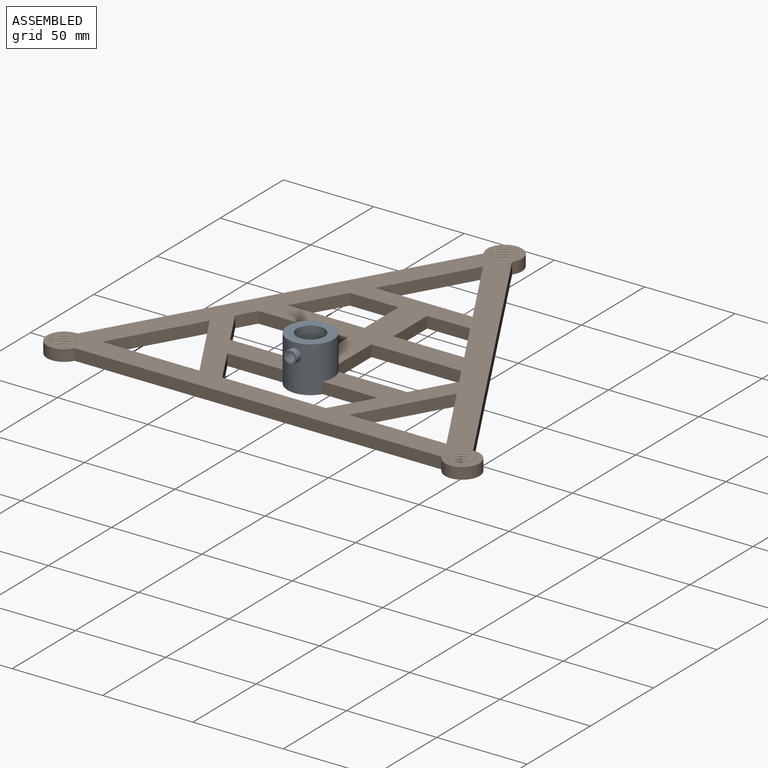
[diagram: assembled view]
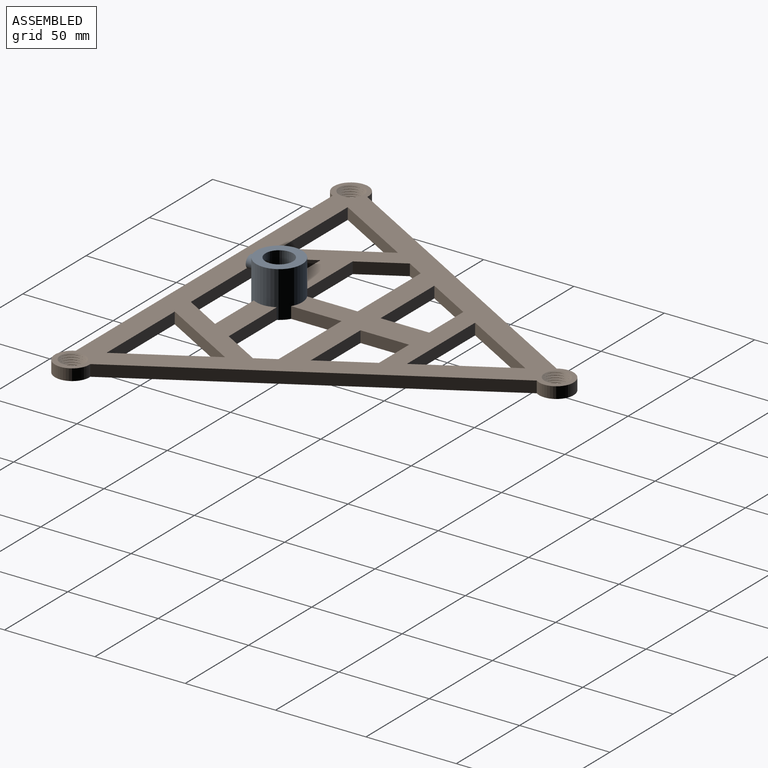
[diagram: assembled view, second angle]
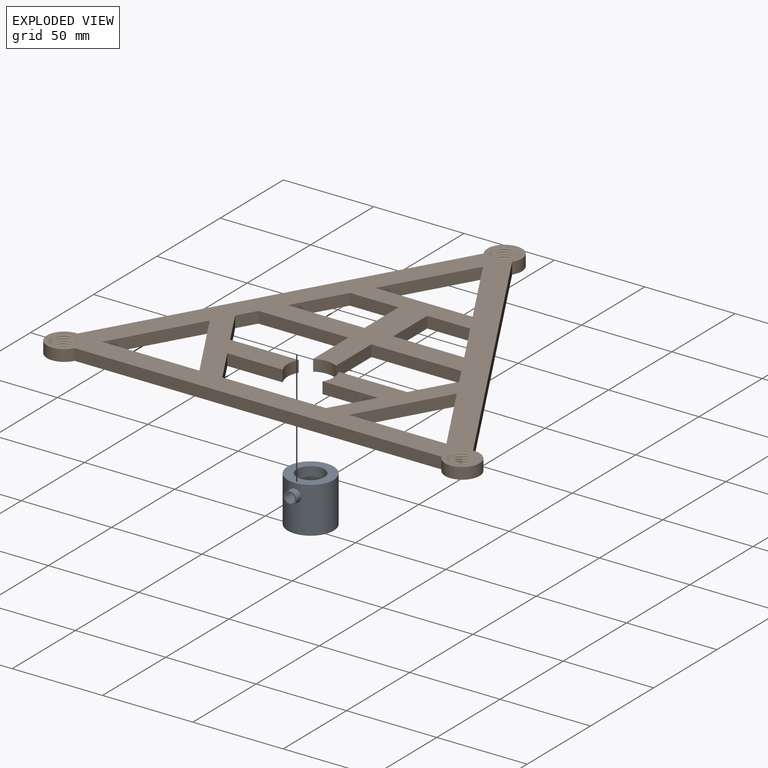
[diagram: exploded view]
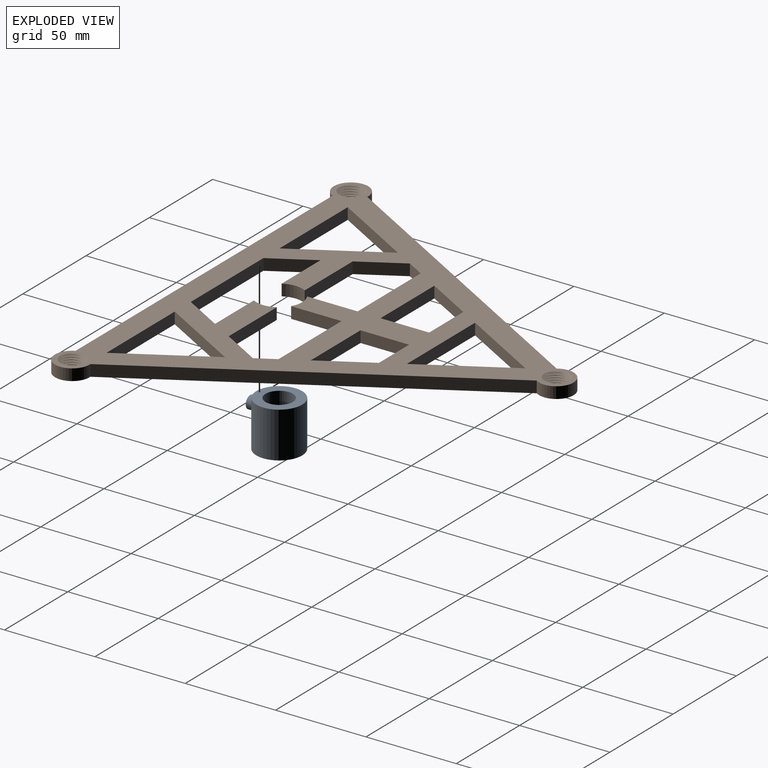
[diagram: exploded view, second angle]
ASSEMBLY  parts=2 mates=2
PART A: 12 faces, bbox 25.7x29.5x25.7 mm
  f0: cylinder r=2.54mm len=2.76mm, axis (0,-1,0), area 0.2mm2, adj f1,f10,f11
  f1: bspline ~9.3x6.89mm, area 122.5mm2, adj f0,f2,f4,f9,f10
  f2: bspline ~9.24x5.96mm, area 123.5mm2, adj f1,f3,f4,f9,f10
  f3: bspline ~5.17x1.76mm, area 0mm2, adj f2,f10
  f4: plane 7.19x7.19mm, normal (0,-1,0), area 14.1mm2, adj f1,f2,f5,f9
  f5: cylinder r=3.45mm len=6.9mm, axis (0,-1,0), area 74.9mm2, adj f4,f6
  f6: cylinder r=12.7mm len=25.4mm, axis (0,0,-1), area 1989.1mm2, adj f5,f7,f8
  f7: plane 25.4x25.4mm, normal (0,0,-1), area 324.3mm2, adj f6,f10
  f8: plane 25.4x25.4mm, normal (0,0,1), area 324.3mm2, adj f6,f10
  f9: cylinder r=2.54mm len=8.73mm, axis (0,-1,0), area 26.7mm2, adj f1,f2,f4,f10
  f10: cylinder r=7.62mm len=25.4mm, axis (0,0,1), area 1193mm2, adj f0,f1,f2,f3,f7,f8,f9,f11
  f11: bspline ~2.58x1.76mm, area 0mm2, adj f0,f10
PART B: 52 faces, bbox 240.3x210.8x8.7 mm
  f0: plane 46.71x26.97mm, normal (0.87,-0.5,0), area 342.5mm2, adj f1,f43,f44,f45
  f1: plane 46.71x26.97mm, normal (-0.87,-0.5,0), area 342.5mm2, adj f0,f43,f44,f45
  f2: plane 26.97x6.35mm, normal (0,-1,0), area 171.3mm2, adj f3,f34,f44,f45
  f3: plane 26.9x6.35mm, normal (-1,0,0), area 170.8mm2, adj f2,f4,f44,f45
  f4: plane 42.5x6.35mm, normal (0,1,0), area 269.9mm2, adj f3,f34,f44,f45
  f5: cylinder r=12.7mm len=12.7mm, axis (0,0,-1), area 84.5mm2, adj f6,f35,f44,f45
  f6: plane 27.94x6.35mm, normal (1,0,0), area 177.4mm2, adj f5,f7,f44,f45
  f7: plane 49.83x6.35mm, normal (0,-1,0), area 316.4mm2, adj f6,f8,f44,f45
  f8: plane 10.08x6.35mm, normal (-0.87,-0.5,0), area 73.9mm2, adj f7,f9,f44,f45
  f9: plane 22.51x12.99mm, normal (-0.87,0.5,0), area 165mm2, adj f8,f10,f44,f45
  f10: plane 38.01x6.35mm, normal (0,1,0), area 241.4mm2, adj f9,f11,f44,f45
  f11: cylinder r=12.7mm len=12.7mm, axis (0,0,-1), area 84.5mm2, adj f10,f12,f44,f45
  f12: plane 30.68x6.35mm, normal (0,-1,0), area 194.8mm2, adj f11,f13,f44,f45
  f13: plane 22.51x12.99mm, normal (-0.87,0.5,0), area 165mm2, adj f12,f14,f44,f45
  f14: plane 57.36x6.35mm, normal (0,1,0), area 364.2mm2, adj f13,f15,f44,f45
  f15: plane 22.51x12.99mm, normal (0.87,0.5,0), area 165mm2, adj f14,f16,f44,f45
  f16: plane 30.68x6.35mm, normal (0,-1,0), area 194.8mm2, adj f15,f17,f44,f45
  f17: cylinder r=12.7mm len=12.7mm, axis (0,0,-1), area 84.5mm2, adj f16,f18,f44,f45
  f18: plane 38.01x6.35mm, normal (0,1,0), area 241.4mm2, adj f17,f19,f44,f45
  f19: plane 22.51x12.99mm, normal (0.87,0.5,0), area 165mm2, adj f18,f20,f44,f45
  f20: plane 10.08x6.35mm, normal (0.87,-0.5,0), area 73.9mm2, adj f19,f21,f44,f45
  f21: plane 49.83x6.35mm, normal (0,-1,0), area 316.4mm2, adj f20,f35,f44,f45
  f22: plane 26.9x6.35mm, normal (1,0,0), area 170.8mm2, adj f23,f36,f44,f45
  f23: plane 23.8x6.35mm, normal (0,-1,0), area 151.1mm2, adj f22,f24,f44,f45
  f24: plane 26.9x15.53mm, normal (-0.87,-0.5,0), area 197.2mm2, adj f23,f36,f44,f45
  f25: plane 46.71x26.97mm, normal (0.87,-0.5,0), area 342.5mm2, adj f26,f37,f44,f45
  f26: plane 46.71x26.97mm, normal (-0.87,-0.5,0), area 342.5mm2, adj f25,f37,f44,f45
  f27: plane 46.71x26.97mm, normal (0.87,-0.5,0), area 342.5mm2, adj f28,f38,f44,f45
  f28: plane 46.71x26.97mm, normal (-0.87,-0.5,0), area 342.5mm2, adj f27,f38,f44,f45
  f29: cylinder r=9.53mm len=19.05mm, axis (0,0,-1), area 262.5mm2, adj f30,f39,f44,f45
  f30: plane 175.95x101.58mm, normal (0.87,0.5,0), area 1290.1mm2, adj f29,f31,f44,f45
  f31: cylinder r=9.53mm len=19.05mm, axis (0,0,-1), area 262.5mm2, adj f30,f32,f44,f45
  f32: plane 175.95x101.58mm, normal (-0.87,0.5,0), area 1290.1mm2, adj f31,f33,f44,f45
  f33: cylinder r=9.53mm len=19.05mm, axis (0,0,-1), area 262.5mm2, adj f32,f39,f44,f45
  f34: plane 26.9x15.53mm, normal (0.87,-0.5,0), area 197.2mm2, adj f2,f4,f44,f45
  f35: plane 27.94x6.35mm, normal (-1,0,0), area 177.4mm2, adj f5,f21,f44,f45
  f36: plane 39.32x6.35mm, normal (0,1,0), area 249.7mm2, adj f22,f24,f44,f45
  f37: plane 53.94x6.35mm, normal (0,1,0), area 342.5mm2, adj f25,f26,f44,f45
  f38: plane 53.94x6.35mm, normal (0,1,0), area 342.5mm2, adj f27,f28,f44,f45
  f39: plane 203.17x6.35mm, normal (0,-1,0), area 1290.1mm2, adj f29,f33,f44,f45
  f40: cylinder r=6.35mm len=12.7mm, axis (0,0,-1), area 5.7mm2, adj f44,f45,f48,f49
  f41: cylinder r=6.35mm len=12.7mm, axis (0,0,-1), area 5.7mm2, adj f44,f45,f46,f47
  f42: cylinder r=6.35mm len=12.7mm, axis (0,0,-1), area 5.7mm2, adj f44,f45,f50,f51
  f43: plane 53.94x6.35mm, normal (0,1,0), area 342.5mm2, adj f0,f1,f44,f45
  f44: plane 240.28x210.76mm, normal (0,0,1), area 12984.3mm2, adj f0,f1,f2,f3,f4,f5,f6,f7
  f45: plane 240.28x210.76mm, normal (0,0,-1), area 12984.3mm2, adj f0,f1,f2,f3,f4,f5,f6,f7
  f46: bspline ~17.15x14.86mm, area 269.4mm2, adj f41,f44,f45,f47
  f47: bspline ~17.15x14.86mm, area 269.6mm2, adj f41,f44,f45,f46
  f48: bspline ~17.15x14.86mm, area 269.4mm2, adj f40,f44,f45,f49
  f49: bspline ~17.15x14.86mm, area 269.6mm2, adj f40,f44,f45,f48
  f50: bspline ~17.15x14.86mm, area 269.4mm2, adj f42,f44,f45,f51
  f51: bspline ~17.15x14.86mm, area 269.6mm2, adj f42,f44,f45,f50
PLACE A t=(-54.98,-95.18,109.16)mm
PLACE B t=(-54.98,-95.18,109.16)mm
MATE fastened A.f6 <-> B.f5  axis (0,0,1) through (-172.3,-53.62,109.16)mm
MATE fastened B.f5 <-> A.f6  axis (0,0,-1) through (-172.3,-53.62,109.16)mm
